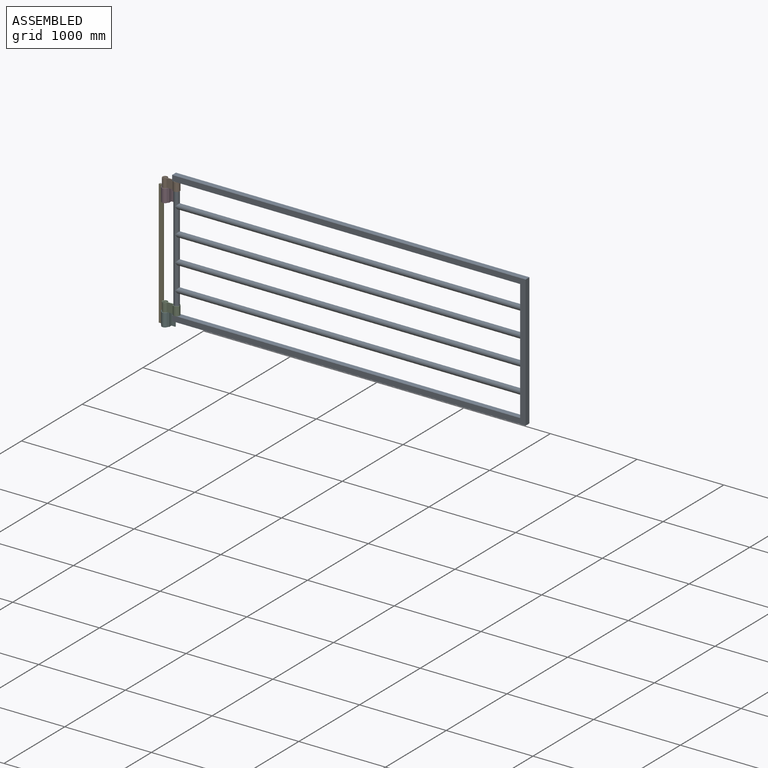
[diagram: assembled view]
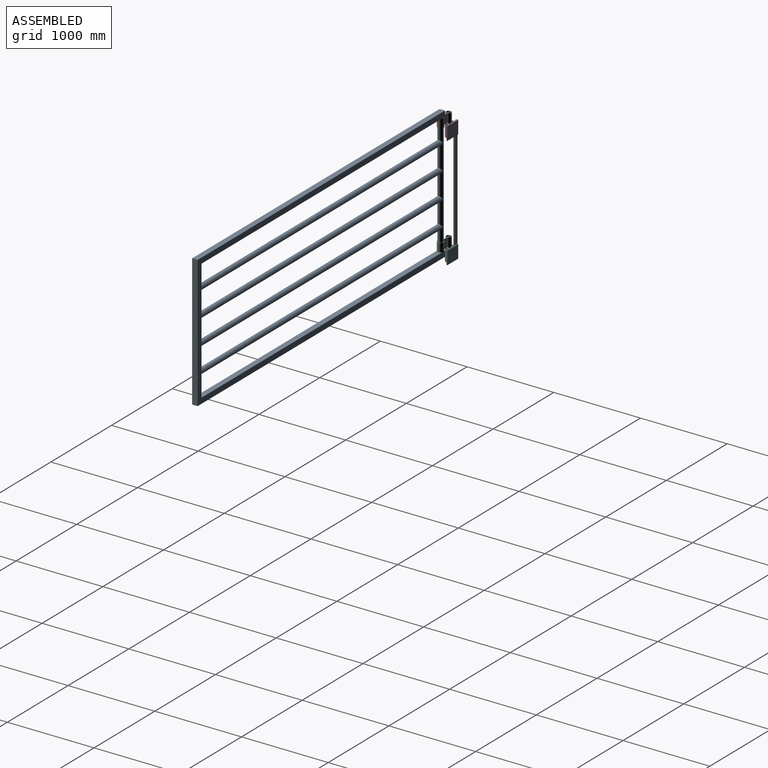
[diagram: assembled view, second angle]
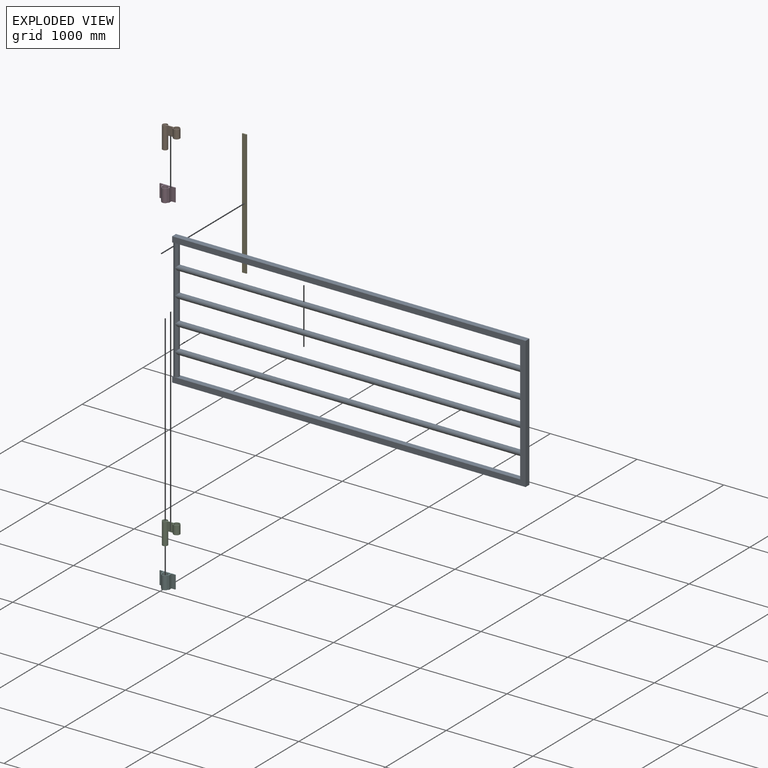
[diagram: exploded view]
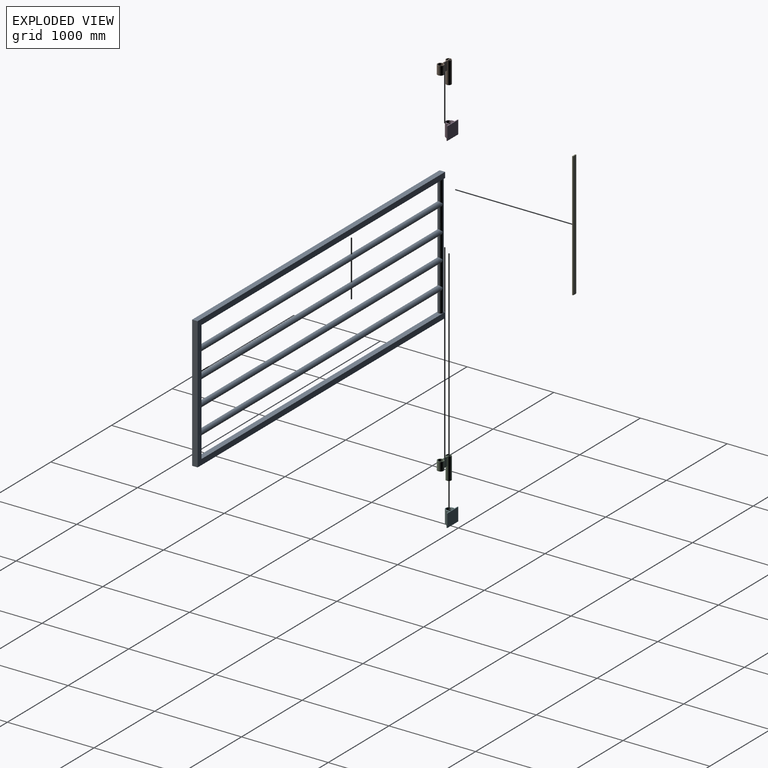
[diagram: exploded view, second angle]
ASSEMBLY  parts=6 mates=5
PART A: 14 faces, bbox 4076.7x63.5x1524 mm
  f0: plane 1397x63.5mm, normal (-1,0,0), area 77276.9mm2, adj f1,f2,f4,f8,f10,f11,f12,f13
  f1: plane 4013.2x63.5mm, normal (0,0,-1), area 251980.9mm2, adj f0,f2,f4,f6,f9
  f2: plane 4076.7x1524mm, normal (0,1,0), area 606450.4mm2, adj f0,f1,f3,f5,f6,f7,f8
  f3: plane 4076.7x63.5mm, normal (0,0,1), area 258870.4mm2, adj f2,f4,f5,f6
  f4: plane 4076.7x1524mm, normal (0,-1,0), area 606450.4mm2, adj f0,f1,f3,f5,f6,f7,f8
  f5: plane 1524x63.5mm, normal (1,0,0), area 96774mm2, adj f2,f3,f4,f7
  f6: plane 1524x63.5mm, normal (-1,0,0), area 17521.1mm2, adj f1,f2,f3,f4,f7,f8,f9
  f7: plane 4076.7x63.5mm, normal (0,0,-1), area 258870.4mm2, adj f2,f4,f5,f6
  f8: plane 4013.2x63.5mm, normal (0,0,1), area 251980.9mm2, adj f0,f2,f4,f6,f9
  f9: cylinder r=30.16mm len=1397mm, axis (0,0,1), area 240723.7mm2, adj f1,f6,f8,f10,f11,f12,f13
  f10: cylinder r=30.16mm len=3982.72mm, axis (1,0,0), area 751248.1mm2, adj f0,f9
  f11: cylinder r=30.16mm len=3982.72mm, axis (1,0,0), area 751248.1mm2, adj f0,f9
  f12: cylinder r=30.16mm len=3982.72mm, axis (1,0,0), area 751248.1mm2, adj f0,f9
  f13: cylinder r=30.16mm len=3982.72mm, axis (1,0,0), area 751248.1mm2, adj f0,f9
PART B: 12 faces, bbox 73x200.2x254 mm
  f0: plane 52.52x9.53mm, normal (0,0,1), area 497.5mm2, adj f2,f4,f5
  f1: cylinder r=30.16mm len=254mm, axis (0,0,-1), area 47165.4mm2, adj f6,f7,f9,f10,f11
  f2: cylinder r=26.26mm len=254mm, axis (0,0,-1), area 39960.4mm2, adj f0,f4,f5,f9,f11
  f3: cylinder r=30.48mm len=101.6mm, axis (0,0,-1), area 19457.6mm2, adj f9,f10
  f4: plane 101.6x51.65mm, normal (1,0,0), area 5247.2mm2, adj f0,f2,f9
  f5: plane 101.6x51.65mm, normal (-1,0,0), area 5247.2mm2, adj f0,f2,f9
  f6: plane 101.6x67.56mm, normal (1,0,0), area 6863.7mm2, adj f1,f8,f9,f10
  f7: plane 101.6x67.56mm, normal (-1,0,0), area 6863.7mm2, adj f1,f8,f9,f10
  f8: cylinder r=36.51mm len=101.6mm, axis (0,0,1), area 22338mm2, adj f6,f7,f9,f10
  f9: plane 200.22x73.03mm, normal (0,0,-1), area 3098.2mm2, adj f1,f2,f3,f4,f5,f6,f7,f8
  f10: plane 140.27x73.03mm, normal (0,0,1), area 1908.7mm2, adj f1,f3,f6,f7,f8
  f11: plane 60.33x60.33mm, normal (0,0,1), area 692mm2, adj f1,f2
PART C: same geometry as B
PART D: 21 faces, bbox 181x84.3x152.4 mm
  f0: plane 181x84.26mm, normal (0,0,-1), area 3616.4mm2, adj f1,f2,f4,f5,f6,f7,f8,f9
  f1: plane 181x152.4mm, normal (0,1,0), area 27584.5mm2, adj f0,f3,f18,f20
  f2: plane 152.4x44.48mm, normal (0,-1,0), area 6778.1mm2, adj f0,f3,f5,f18
  f3: plane 181x84.26mm, normal (0,0,1), area 3616.4mm2, adj f1,f2,f4,f5,f6,f7,f8,f9
  f4: plane 152.4x33.19mm, normal (-1,0,0), area 5058.4mm2, adj f0,f3,f14,f17
  f5: plane 152.4x38.61mm, normal (1,0,0), area 5883.9mm2, adj f0,f2,f3,f15
  f6: plane 152.4x33.27mm, normal (1,0,0), area 5070.1mm2, adj f0,f3,f13,f17
  f7: cylinder r=36.51mm len=152.4mm, axis (0,0,1), area 15840.5mm2, adj f0,f3,f13,f14
  f8: cylinder r=30.96mm len=152.4mm, axis (0,0,1), area 29642.4mm2, adj f0,f3
  f9: cylinder r=36.51mm len=152.4mm, axis (0,0,1), area 15840.5mm2, adj f0,f3,f10,f16
  f10: cylinder r=5.34mm len=152.4mm, axis (0,0,1), area 1335.1mm2, adj f0,f3,f9,f11
  f11: plane 152.4x4.2mm, normal (0,-1,0), area 640.5mm2, adj f0,f3,f10,f12
  f12: plane 152.4x38.61mm, normal (-1,0,0), area 5883.9mm2, adj f0,f3,f11,f19
  f13: cylinder r=5.34mm len=152.4mm, axis (0,0,1), area 59.6mm2, adj f0,f3,f6,f7
  f14: cylinder r=5.42mm len=152.4mm, axis (0,0,1), area 61.3mm2, adj f0,f3,f4,f7
  f15: plane 152.4x4.11mm, normal (0,-1,0), area 626.2mm2, adj f0,f3,f5,f16
  f16: cylinder r=5.42mm len=152.4mm, axis (0,0,1), area 1357.9mm2, adj f0,f3,f9,f15
  f17: plane 152.4x73.03mm, normal (0,-1,0), area 11129mm2, adj f0,f3,f4,f6
  f18: plane 152.4x9.14mm, normal (1,0,0), area 1393.5mm2, adj f0,f1,f2,f3
  f19: plane 152.4x44.45mm, normal (0,-1,0), area 6774.2mm2, adj f0,f3,f12,f20
  f20: plane 152.4x9.14mm, normal (-1,0,0), area 1393.5mm2, adj f0,f1,f3,f19
PART E: 6 faces, bbox 50.8x12.7x1447.8 mm
  f0: plane 1447.8x50.8mm, normal (0,-1,0), area 73548.2mm2, adj f1,f3,f4,f5
  f1: plane 1447.8x12.7mm, normal (1,0,0), area 18387.1mm2, adj f0,f2,f4,f5
  f2: plane 1447.8x50.8mm, normal (0,1,0), area 73548.2mm2, adj f1,f3,f4,f5
  f3: plane 1447.8x12.7mm, normal (-1,0,0), area 18387.1mm2, adj f0,f2,f4,f5
  f4: plane 50.8x12.7mm, normal (0,0,-1), area 645.2mm2, adj f0,f1,f2,f3
  f5: plane 50.8x12.7mm, normal (0,0,1), area 645.2mm2, adj f0,f1,f2,f3
PART F: same geometry as D
PLACE A t=(194.06,-47.75,1581.15)mm
PLACE B rot(axis=(-0.71,0.71,0),180deg) t=(90.49,-47.75,1447.8)mm
PLACE C rot(axis=(0.71,-0.71,0),180deg) t=(90.49,-47.75,152.4)mm
PLACE D t=(-155.89,-268.22,1447.8)mm
PLACE E t=(25.4,-15.49,0)mm
PLACE F t=(-155.89,-268.22,152.4)mm
MATE revolute C.f2 <-> F.f7  axis (0,0,-1) through (90.49,-47.75,0)mm
MATE revolute C.f3 <-> A.f9  axis (0,0,-1) through (224.03,-47.75,152.4)mm
MATE revolute B.f8 <-> A.f9  axis (0,0,1) through (224.03,-47.75,1549.4)mm
MATE fastened E.f2 <-> F.f19  axis (0,1,0) through (0,-9.14,0)mm
MATE fastened D.f19 <-> E.f2  axis (0,-1,0) through (0,-9.14,1447.8)mm
